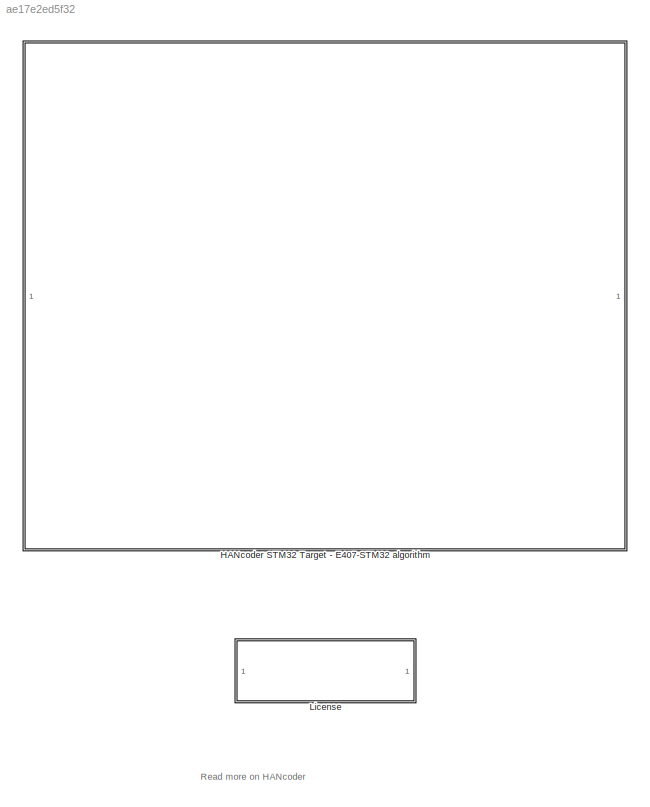
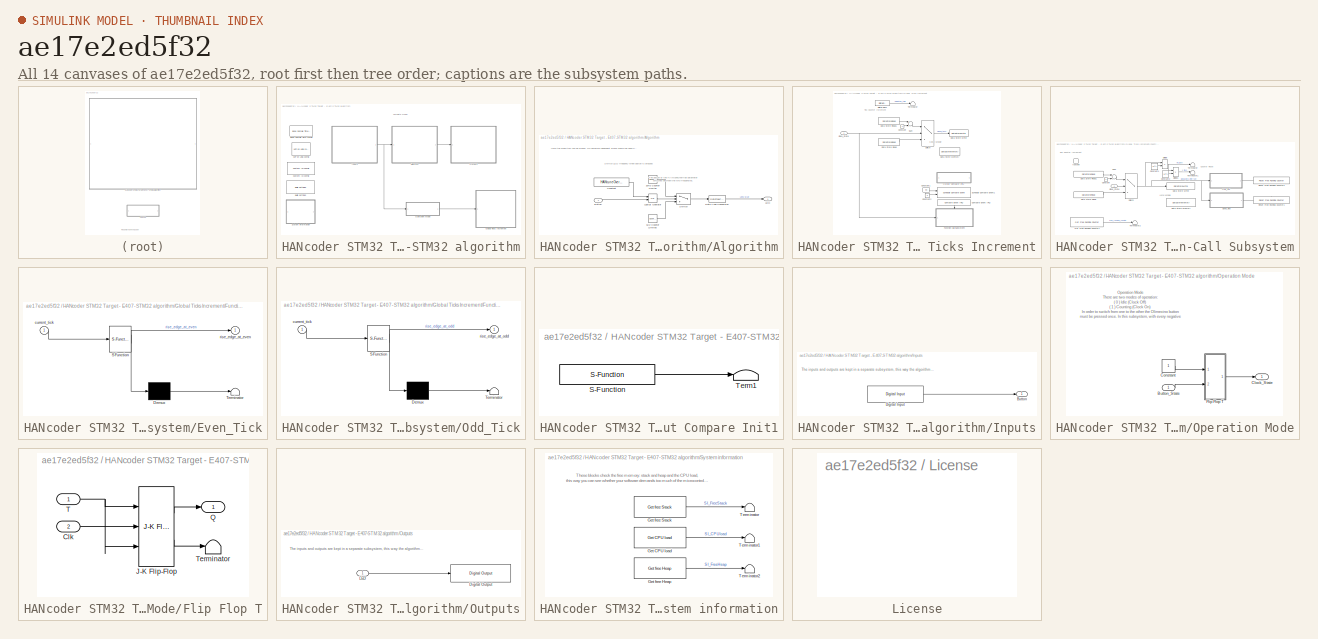
[diagram: thumbnail index - all 14 canvases of the model, root first then tree order]
MODEL slx_ae17e2ed5f32
KIND model
CONFIG AbsTol = auto
CONFIG EnableMultiTasking = off
CONFIG FixedStep = 0.01
CONFIG MaxStep = auto
CONFIG MinStep = auto
CONFIG PreLoadFcn = librarySetup\neval([bdroot,'_startup']) %Calling [modelName]_startup.m
CONFIG RelTol = 1e-3
CONFIG SampleTimeConstraint = Unconstrained
CONFIG Solver = FixedStepDiscrete
CONFIG SolverName = FixedStepDiscrete
CONFIG StartTime = 0.0
CONFIG StopTime = 1
BLOCK [SubSystem] HANcoder STM32 Target - E407-STM32 algorithm
  CopyFcn = HANcoderChecks('Copy');
  MoveFcn = HANcoderChecks('MoveE407');
  NameChangeFcn = HANcoderChecks('NameChangeE407');
  Ports = []
  RequestExecContextInheritance = off
BLOCK [SubSystem] HANcoder STM32 Target - E407-STM32 algorithm/Algorithm
  Ports = [1, 1]
  RequestExecContextInheritance = off
BLOCK [Reference] HANcoder STM32 Target - E407-STM32 algorithm/Algorithm/10Hz Counter Limiter  REF=simulink/Sources/Counter
Limited
  Ports = [0, 1]
  SourceBlock = simulink/Sources/Counter\nLimited
  SourceProductBaseCode = SL
  SourceProductName = Simulink
  SourceType = Counter Limited
BLOCK [Reference] HANcoder STM32 Target - E407-STM32 algorithm/Algorithm/5Hz Counter Limited  REF=simulink/Sources/Counter
Limited
  Ports = [0, 1]
  SourceBlock = simulink/Sources/Counter\nLimited
  SourceProductBaseCode = SL
  SourceProductName = Simulink
  SourceType = Counter Limited
BLOCK [Inport] HANcoder STM32 Target - E407-STM32 algorithm/Algorithm/Button
  IconDisplay = Port number
BLOCK [Constant] HANcoder STM32 Target - E407-STM32 algorithm/Algorithm/Constant
  OutDataTypeStr = boolean
  Value = HANtuneOverride
BLOCK [DataTypeConversion] HANcoder STM32 Target - E407-STM32 algorithm/Algorithm/Data Type Conversion
  OutDataTypeStr = boolean
  RndMeth = Floor
  SaturateOnIntegerOverflow = off
BLOCK [Outport] HANcoder STM32 Target - E407-STM32 algorithm/Algorithm/LED
  IconDisplay = Port number
BLOCK [Logic] HANcoder STM32 Target - E407-STM32 algorithm/Algorithm/Logical Operator
  AllPortsSameDT = off
  Operator = OR
  OutDataTypeStr = boolean
  Ports = [2, 1]
BLOCK [Switch] HANcoder STM32 Target - E407-STM32 algorithm/Algorithm/Switch
  Criteria = u2 > Threshold
  InputSameDT = off
  SaturateOnIntegerOverflow = off
BLOCK [Reference] HANcoder STM32 Target - E407-STM32 algorithm/Base Sample Time config  REF=HANcoder_STM32_Target/STM32-E407/System Config/Base Sample Time config
  Description = HANcoder Target STM32-E407 blockset version 0.5
  Ports = []
  SourceBlock = HANcoder_STM32_Target/STM32-E407/System Config/Base Sample Time config
  SourceProductName = HANcoder STM32 Target
  SourceType = Base Sample Time config
  Tag = HANcoder_TARGET_STM32_E407
  UserDataPersistent = on
BLOCK [Reference] HANcoder STM32 Target - E407-STM32 algorithm/Build settings  REF=HANcoder_STM32_Target/STM32-E407/System Config/Build settings
  Ports = []
  SourceBlock = HANcoder_STM32_Target/STM32-E407/System Config/Build settings
  SourceProductName = HANcoder STM32 Target
  SourceType = Build Settings
  Tag = HANcoder_TARGET_STM32_E407
  UserDataPersistent = on
BLOCK [Reference] HANcoder STM32 Target - E407-STM32 algorithm/Custom ID config  REF=HANcoder_STM32_Target/STM32-E407/System Config/Custom ID config
  Ports = []
  SourceBlock = HANcoder_STM32_Target/STM32-E407/System Config/Custom ID config
  SourceProductName = HANcoder STM32 Target
  SourceType = Custom ID config
  Tag = HANcoder_TARGET_STM32_E407
  UserDataPersistent = on
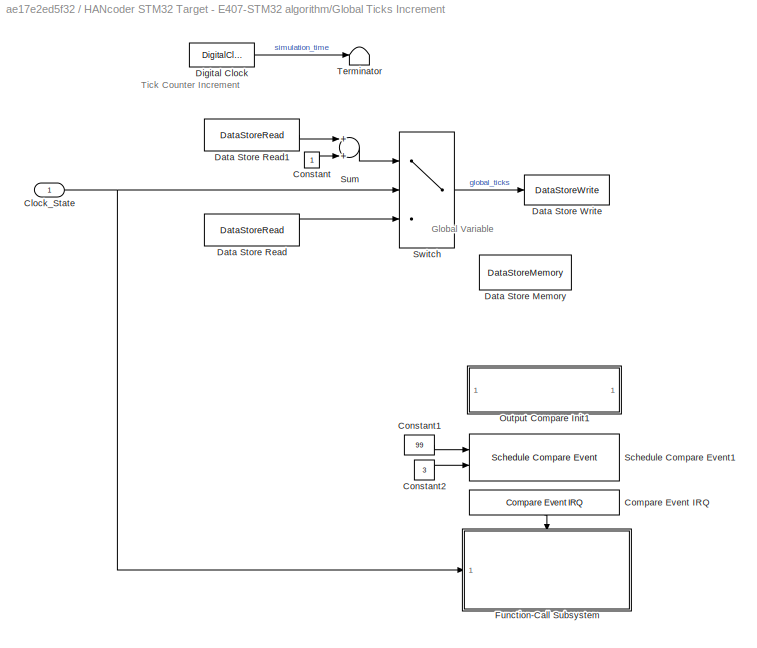
BLOCK [SubSystem] HANcoder STM32 Target - E407-STM32 algorithm/Global Ticks Increment
  Ports = [1]
  RequestExecContextInheritance = off
BLOCK [Inport] HANcoder STM32 Target - E407-STM32 algorithm/Global Ticks Increment/Clock_State
  IconDisplay = Port number
BLOCK [Reference] HANcoder STM32 Target - E407-STM32 algorithm/Global Ticks Increment/Compare Event IRQ  REF=HANcoder_STM32_Target/STM32-E407/Timer Outputs/Compare Event IRQ
  Ports = [0, 1]
  SourceBlock = HANcoder_STM32_Target/STM32-E407/Timer Outputs/Compare Event IRQ
  SourceProductName = HANcoder STM32 Target
  SourceType = Compare Event IRQ
  Tag = HANcoder_TARGET_STM32_E407
  UserDataPersistent = on
BLOCK [Constant] HANcoder STM32 Target - E407-STM32 algorithm/Global Ticks Increment/Constant
BLOCK [Constant] HANcoder STM32 Target - E407-STM32 algorithm/Global Ticks Increment/Constant1
  OutDataTypeStr = uint16
  Value = 99
BLOCK [Constant] HANcoder STM32 Target - E407-STM32 algorithm/Global Ticks Increment/Constant2
  OutDataTypeStr = uint8
  Value = 3
BLOCK [DataStoreMemory] HANcoder STM32 Target - E407-STM32 algorithm/Global Ticks Increment/Data Store Memory
  DataStoreName = global_ticks_mem
  ReadBeforeWriteMsg = warning
  ShowAdditionalParam = off
  WriteAfterReadMsg = warning
  WriteAfterWriteMsg = warning
BLOCK [DataStoreRead] HANcoder STM32 Target - E407-STM32 algorithm/Global Ticks Increment/Data Store Read
  DataStoreName = global_ticks_mem
  Ports = [0, 1]
BLOCK [DataStoreRead] HANcoder STM32 Target - E407-STM32 algorithm/Global Ticks Increment/Data Store Read1
  DataStoreName = global_ticks_mem
  Ports = [0, 1]
BLOCK [DataStoreWrite] HANcoder STM32 Target - E407-STM32 algorithm/Global Ticks Increment/Data Store Write
  DataStoreName = global_ticks_mem
  Ports = [1]
BLOCK [DigitalClock] HANcoder STM32 Target - E407-STM32 algorithm/Global Ticks Increment/Digital Clock
  SampleTime = 0.01
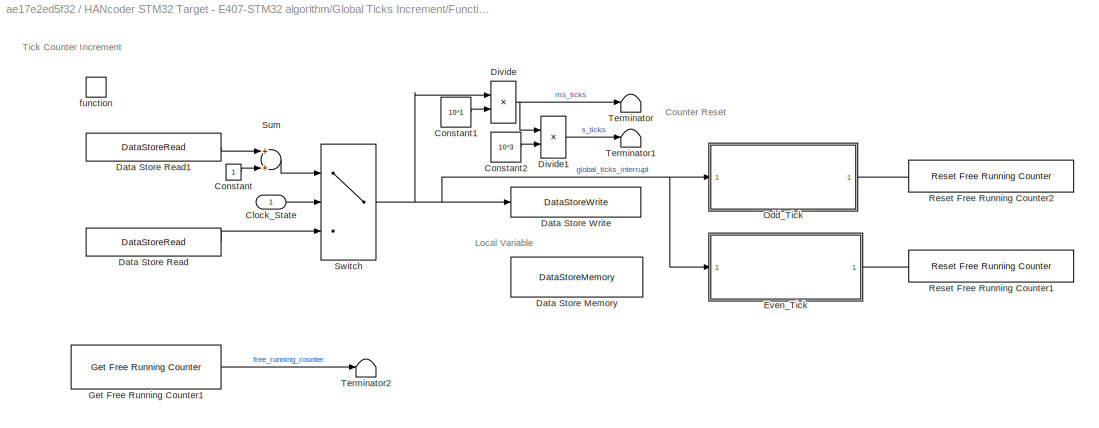
BLOCK [SubSystem] HANcoder STM32 Target - E407-STM32 algorithm/Global Ticks Increment/Function-Call Subsystem
  Ports = [1, 0, 0, 1]
  RequestExecContextInheritance = off
  TreatAsAtomicUnit = on
BLOCK [Inport] HANcoder STM32 Target - E407-STM32 algorithm/Global Ticks Increment/Function-Call Subsystem/Clock_State
  IconDisplay = Port number
BLOCK [Constant] HANcoder STM32 Target - E407-STM32 algorithm/Global Ticks Increment/Function-Call Subsystem/Constant
BLOCK [Constant] HANcoder STM32 Target - E407-STM32 algorithm/Global Ticks Increment/Function-Call Subsystem/Constant1
  Value = 10^1
BLOCK [Constant] HANcoder STM32 Target - E407-STM32 algorithm/Global Ticks Increment/Function-Call Subsystem/Constant2
  Value = 10^3
BLOCK [DataStoreMemory] HANcoder STM32 Target - E407-STM32 algorithm/Global Ticks Increment/Function-Call Subsystem/Data Store Memory
  DataStoreName = global_ticks_mem_IRQ
  ReadBeforeWriteMsg = warning
  ShowAdditionalParam = off
  WriteAfterReadMsg = warning
  WriteAfterWriteMsg = warning
BLOCK [DataStoreRead] HANcoder STM32 Target - E407-STM32 algorithm/Global Ticks Increment/Function-Call Subsystem/Data Store Read
  DataStoreName = global_ticks_mem_IRQ
  Ports = [0, 1]
BLOCK [DataStoreRead] HANcoder STM32 Target - E407-STM32 algorithm/Global Ticks Increment/Function-Call Subsystem/Data Store Read1
  DataStoreName = global_ticks_mem_IRQ
  Ports = [0, 1]
BLOCK [DataStoreWrite] HANcoder STM32 Target - E407-STM32 algorithm/Global Ticks Increment/Function-Call Subsystem/Data Store Write
  DataStoreName = global_ticks_mem_IRQ
  Ports = [1]
BLOCK [Product] HANcoder STM32 Target - E407-STM32 algorithm/Global Ticks Increment/Function-Call Subsystem/Divide
  InputSameDT = off
  Inputs = */
  OutDataTypeStr = Inherit: Inherit via internal rule
  Ports = [2, 1]
  RndMeth = Floor
  SaturateOnIntegerOverflow = off
BLOCK [Product] HANcoder STM32 Target - E407-STM32 algorithm/Global Ticks Increment/Function-Call Subsystem/Divide1
  InputSameDT = off
  Inputs = */
  OutDataTypeStr = Inherit: Inherit via internal rule
  Ports = [2, 1]
  RndMeth = Floor
  SaturateOnIntegerOverflow = off
BLOCK [SubSystem] HANcoder STM32 Target - E407-STM32 algorithm/Global Ticks Increment/Function-Call Subsystem/Even_Tick
  ErrorFcn = Stateflow.Translate.translate
  PermitHierarchicalResolution = ExplicitOnly
  Ports = [1, 1]
  RequestExecContextInheritance = off
  SFBlockType = Chart
  TreatAsAtomicUnit = on
BLOCK [Demux] HANcoder STM32 Target - E407-STM32 algorithm/Global Ticks Increment/Function-Call Subsystem/Even_Tick/ Demux 
  Outputs = 1
  Ports = [1, 1]
BLOCK [S-Function] HANcoder STM32 Target - E407-STM32 algorithm/Global Ticks Increment/Function-Call Subsystem/Even_Tick/ SFunction 
  EnableBusSupport = on
  FunctionName = sf_sfun
  PortCounts = [1 2]
  Ports = [1, 2]
  SFcnIsStateOwnerBlock = off
  SFunctionDeploymentMode = off
  Tag = Stateflow S-Function HANcoder_E407_Local_Time_Ticks 1
BLOCK [Terminator] HANcoder STM32 Target - E407-STM32 algorithm/Global Ticks Increment/Function-Call Subsystem/Even_Tick/ Terminator 
BLOCK [Inport] HANcoder STM32 Target - E407-STM32 algorithm/Global Ticks Increment/Function-Call Subsystem/Even_Tick/current_tick
  IconDisplay = Port number
BLOCK [Outport] HANcoder STM32 Target - E407-STM32 algorithm/Global Ticks Increment/Function-Call Subsystem/Even_Tick/rise_edge_at_even
  IconDisplay = Port number
BLOCK [Reference] HANcoder STM32 Target - E407-STM32 algorithm/Global Ticks Increment/Function-Call Subsystem/Get Free Running Counter1  REF=HANcoder_STM32_Target/STM32-E407/Timer Outputs/Get Free Running Counter
  Ports = [0, 1]
  SourceBlock = HANcoder_STM32_Target/STM32-E407/Timer Outputs/Get Free Running Counter
  SourceProductName = HANcoder STM32 Target
  SourceType = Get Free Running Counter
  Tag = HANcoder_TARGET_STM32_E407
  UserDataPersistent = on
BLOCK [SubSystem] HANcoder STM32 Target - E407-STM32 algorithm/Global Ticks Increment/Function-Call Subsystem/Odd_Tick
  ErrorFcn = Stateflow.Translate.translate
  PermitHierarchicalResolution = ExplicitOnly
  Ports = [1, 1]
  RequestExecContextInheritance = off
  SFBlockType = Chart
  TreatAsAtomicUnit = on
BLOCK [Demux] HANcoder STM32 Target - E407-STM32 algorithm/Global Ticks Increment/Function-Call Subsystem/Odd_Tick/ Demux 
  Outputs = 1
  Ports = [1, 1]
BLOCK [S-Function] HANcoder STM32 Target - E407-STM32 algorithm/Global Ticks Increment/Function-Call Subsystem/Odd_Tick/ SFunction 
  EnableBusSupport = on
  FunctionName = sf_sfun
  PortCounts = [1 2]
  Ports = [1, 2]
  SFcnIsStateOwnerBlock = off
  SFunctionDeploymentMode = off
  Tag = Stateflow S-Function HANcoder_E407_Local_Time_Ticks 3
BLOCK [Terminator] HANcoder STM32 Target - E407-STM32 algorithm/Global Ticks Increment/Function-Call Subsystem/Odd_Tick/ Terminator 
BLOCK [Inport] HANcoder STM32 Target - E407-STM32 algorithm/Global Ticks Increment/Function-Call Subsystem/Odd_Tick/current_tick
  IconDisplay = Port number
BLOCK [Outport] HANcoder STM32 Target - E407-STM32 algorithm/Global Ticks Increment/Function-Call Subsystem/Odd_Tick/rise_edge_at_odd
  IconDisplay = Port number
BLOCK [Reference] HANcoder STM32 Target - E407-STM32 algorithm/Global Ticks Increment/Function-Call Subsystem/Reset Free Running Counter1  REF=HANcoder_STM32_Target/STM32-E407/Timer Outputs/Reset Free Running Counter
  Ports = [0, 0, 0, 1]
  SourceBlock = HANcoder_STM32_Target/STM32-E407/Timer Outputs/Reset Free Running Counter
  SourceProductName = HANcoder STM32 Target
  SourceType = Reset Free Running Counter
  Tag = HANcoder_TARGET_STM32_E407
  UserDataPersistent = on
BLOCK [Reference] HANcoder STM32 Target - E407-STM32 algorithm/Global Ticks Increment/Function-Call Subsystem/Reset Free Running Counter2  REF=HANcoder_STM32_Target/STM32-E407/Timer Outputs/Reset Free Running Counter
  Ports = [0, 0, 0, 1]
  SourceBlock = HANcoder_STM32_Target/STM32-E407/Timer Outputs/Reset Free Running Counter
  SourceProductName = HANcoder STM32 Target
  SourceType = Reset Free Running Counter
  Tag = HANcoder_TARGET_STM32_E407
  UserDataPersistent = on
BLOCK [Sum] HANcoder STM32 Target - E407-STM32 algorithm/Global Ticks Increment/Function-Call Subsystem/Sum
  InputSameDT = off
  OutDataTypeStr = Inherit: Inherit via internal rule
  Ports = [2, 1]
  SaturateOnIntegerOverflow = off
BLOCK [Switch] HANcoder STM32 Target - E407-STM32 algorithm/Global Ticks Increment/Function-Call Subsystem/Switch
  Criteria = u2 > Threshold
  InputSameDT = off
  SaturateOnIntegerOverflow = off
BLOCK [Terminator] HANcoder STM32 Target - E407-STM32 algorithm/Global Ticks Increment/Function-Call Subsystem/Terminator
BLOCK [Terminator] HANcoder STM32 Target - E407-STM32 algorithm/Global Ticks Increment/Function-Call Subsystem/Terminator1
BLOCK [Terminator] HANcoder STM32 Target - E407-STM32 algorithm/Global Ticks Increment/Function-Call Subsystem/Terminator2
BLOCK [TriggerPort] HANcoder STM32 Target - E407-STM32 algorithm/Global Ticks Increment/Function-Call Subsystem/function
  Ports = []
  StatesWhenEnabling = held
  TriggerType = function-call
  VariantControl = Variant
BLOCK [SubSystem] HANcoder STM32 Target - E407-STM32 algorithm/Global Ticks Increment/Output Compare Init1
  AncestorBlock = HANcoder_STM32_Target/STM32-E407/Timer Outputs/Output Compare Init
  CopyFcn = sfcn_timeout_init_chk();
  MoveFcn = drawLogos
  Ports = []
  RequestExecContextInheritance = off
  Tag = HANcoder_TARGET_STM32_E407
  UserDataPersistent = on
BLOCK [S-Function] HANcoder STM32 Target - E407-STM32 algorithm/Global Ticks Increment/Output Compare Init1/S-Function
  EnableBusSupport = off
  FunctionName = sfcn_timeout_init
  Ports = [0, 1]
  SFcnIsStateOwnerBlock = off
  SFunctionDeploymentMode = off
BLOCK [Terminator] HANcoder STM32 Target - E407-STM32 algorithm/Global Ticks Increment/Output Compare Init1/Term1
BLOCK [Reference] HANcoder STM32 Target - E407-STM32 algorithm/Global Ticks Increment/Schedule Compare Event1  REF=HANcoder_STM32_Target/STM32-E407/Timer Outputs/Schedule Compare Event
  Ports = [2]
  SourceBlock = HANcoder_STM32_Target/STM32-E407/Timer Outputs/Schedule Compare Event
  SourceProductName = HANcoder STM32 Target
  SourceType = Schedule Compare Event
  Tag = HANcoder_TARGET_STM32_E407
  UserDataPersistent = on
BLOCK [Sum] HANcoder STM32 Target - E407-STM32 algorithm/Global Ticks Increment/Sum
  InputSameDT = off
  OutDataTypeStr = Inherit: Inherit via internal rule
  Ports = [2, 1]
  SaturateOnIntegerOverflow = off
BLOCK [Switch] HANcoder STM32 Target - E407-STM32 algorithm/Global Ticks Increment/Switch
  Criteria = u2 > Threshold
  InputSameDT = off
  SaturateOnIntegerOverflow = off
BLOCK [Terminator] HANcoder STM32 Target - E407-STM32 algorithm/Global Ticks Increment/Terminator
BLOCK [SubSystem] HANcoder STM32 Target - E407-STM32 algorithm/Inputs
  Ports = [0, 1]
  RequestExecContextInheritance = off
BLOCK [Outport] HANcoder STM32 Target - E407-STM32 algorithm/Inputs/Button
  IconDisplay = Port number
BLOCK [Reference] HANcoder STM32 Target - E407-STM32 algorithm/Inputs/Digital Input  REF=HANcoder_STM32_Target/STM32-E407/Digital Inputs/Digital Input
  Ports = [0, 1]
  SourceBlock = HANcoder_STM32_Target/STM32-E407/Digital Inputs/Digital Input
  SourceProductName = HANcoder STM32 Target
  SourceType = Digital Input
  Tag = HANcoder_TARGET_STM32_E407
  UserDataPersistent = on
BLOCK [SubSystem] HANcoder STM32 Target - E407-STM32 algorithm/Operation Mode
  Ports = [1, 1]
  RequestExecContextInheritance = off
BLOCK [Inport] HANcoder STM32 Target - E407-STM32 algorithm/Operation Mode/Button_State
  IconDisplay = Port number
BLOCK [Outport] HANcoder STM32 Target - E407-STM32 algorithm/Operation Mode/Clock_State
  IconDisplay = Port number
BLOCK [Constant] HANcoder STM32 Target - E407-STM32 algorithm/Operation Mode/Constant
  OutDataTypeStr = boolean
BLOCK [SubSystem] HANcoder STM32 Target - E407-STM32 algorithm/Operation Mode/Flip Flop T
  Ports = [2, 1]
  RequestExecContextInheritance = off
BLOCK [Inport] HANcoder STM32 Target - E407-STM32 algorithm/Operation Mode/Flip Flop T/Clk
  IconDisplay = Port number
  Port = 2
BLOCK [Reference] HANcoder STM32 Target - E407-STM32 algorithm/Operation Mode/Flip Flop T/J-K Flip-Flop  REF=simulink_extras/Flip Flops/J-K
Flip-Flop
  Ports = [3, 2]
  SourceBlock = simulink_extras/Flip Flops/J-K\nFlip-Flop
  SourceProductBaseCode = SL
  SourceProductName = Simulink
  SourceType = JKFlipFlop
BLOCK [Outport] HANcoder STM32 Target - E407-STM32 algorithm/Operation Mode/Flip Flop T/Q
  IconDisplay = Port number
BLOCK [Inport] HANcoder STM32 Target - E407-STM32 algorithm/Operation Mode/Flip Flop T/T
  IconDisplay = Port number
BLOCK [Terminator] HANcoder STM32 Target - E407-STM32 algorithm/Operation Mode/Flip Flop T/Terminator
BLOCK [SubSystem] HANcoder STM32 Target - E407-STM32 algorithm/Outputs
  Ports = [1]
  RequestExecContextInheritance = off
BLOCK [Reference] HANcoder STM32 Target - E407-STM32 algorithm/Outputs/Digital Output  REF=HANcoder_STM32_Target/STM32-E407/Digital Outputs/Digital Output
  Ports = [1]
  SourceBlock = HANcoder_STM32_Target/STM32-E407/Digital Outputs/Digital Output
  SourceProductName = HANcoder STM32 Target
  SourceType = Digital Output
  Tag = HANcoder_TARGET_STM32_E407
  UserDataPersistent = on
BLOCK [Inport] HANcoder STM32 Target - E407-STM32 algorithm/Outputs/LED
  IconDisplay = Port number
BLOCK [SubSystem] HANcoder STM32 Target - E407-STM32 algorithm/System information
  Ports = []
  RequestExecContextInheritance = off
BLOCK [Reference] HANcoder STM32 Target - E407-STM32 algorithm/System information/Get CPU load  REF=HANcoder_STM32_Target/STM32-E407/System Management/Get CPU load
  Ports = [0, 1]
  SourceBlock = HANcoder_STM32_Target/STM32-E407/System Management/Get CPU load
  SourceProductName = HANcoder STM32 Target
  SourceType = Get CPU load
  Tag = HANcoder_TARGET_STM32_E407
  UserDataPersistent = on
BLOCK [Reference] HANcoder STM32 Target - E407-STM32 algorithm/System information/Get free Heap  REF=HANcoder_STM32_Target/STM32-E407/System Management/Get free Heap
  Ports = [0, 1]
  SourceBlock = HANcoder_STM32_Target/STM32-E407/System Management/Get free Heap
  SourceProductName = HANcoder STM32 Target
  SourceType = Get free Heap
  Tag = HANcoder_TARGET_STM32_E407
  UserDataPersistent = on
BLOCK [Reference] HANcoder STM32 Target - E407-STM32 algorithm/System information/Get free Stack  REF=HANcoder_STM32_Target/STM32-E407/System Management/Get free Stack
  Ports = [0, 1]
  SourceBlock = HANcoder_STM32_Target/STM32-E407/System Management/Get free Stack
  SourceProductName = HANcoder STM32 Target
  SourceType = Get free Stacl
  Tag = HANcoder_TARGET_STM32_E407
  UserDataPersistent = on
BLOCK [Terminator] HANcoder STM32 Target - E407-STM32 algorithm/System information/Terminator
BLOCK [Terminator] HANcoder STM32 Target - E407-STM32 algorithm/System information/Terminator1
BLOCK [Terminator] HANcoder STM32 Target - E407-STM32 algorithm/System information/Terminator2
BLOCK [Reference] HANcoder STM32 Target - E407-STM32 algorithm/XCP on USB config  REF=HANcoder_STM32_Target/STM32-E407/System Config/XCP on USB config
  Ports = []
  SourceBlock = HANcoder_STM32_Target/STM32-E407/System Config/XCP on USB config
  SourceProductName = HANcoder STM32 Target
  SourceType = XCP on USB config
  Tag = HANcoder_TARGET_STM32_E407
  UserDataPersistent = on
BLOCK [SubSystem] License
  MoveFcn = HANcoderChecks('MoveLicenseBlock');
  NameChangeFcn = HANcoderChecks('NameChangeLicenseBlock');
  OpenFcn = winopen('License.pdf')
  Ports = []
  RequestExecContextInheritance = off
  ShowPortLabels = none
ANNOTATION (root): Read more on HANcoder
ANNOTATION HANcoder STM32 Target - E407-STM32 algorithm: Template model
ANNOTATION HANcoder STM32 Target - E407-STM32 algorithm/Algorithm: Here the algorithm can be placed. No hardware dependent blocks should be used here.
ANNOTATION HANcoder STM32 Target - E407-STM32 algorithm/Algorithm: Switch LED frequency when button is pressed
ANNOTATION HANcoder STM32 Target - E407-STM32 algorithm/Algorithm: The button or the HANtuneOverride parameter switches between the two frequencies.
ANNOTATION HANcoder STM32 Target - E407-STM32 algorithm/Global Ticks Increment: Global Variable
ANNOTATION HANcoder STM32 Target - E407-STM32 algorithm/Global Ticks Increment: Tick Counter Increment
ANNOTATION HANcoder STM32 Target - E407-STM32 algorithm/Global Ticks Increment/Function-Call Subsystem: Local Variable
ANNOTATION HANcoder STM32 Target - E407-STM32 algorithm/Global Ticks Increment/Function-Call Subsystem: Counter Reset
ANNOTATION HANcoder STM32 Target - E407-STM32 algorithm/Global Ticks Increment/Function-Call Subsystem: Tick Counter Increment
ANNOTATION HANcoder STM32 Target - E407-STM32 algorithm/Inputs: The inputs and outputs are kept in a separate subsystem, this way the algorithm can easily be transferred to different hardware
ANNOTATION HANcoder STM32 Target - E407-STM32 algorithm/Operation Mode: Operation Mode There are two modes of operation: ( 0 ) Idle (Clock Off) ( 1 ) Counting (Clock On) In order to switch from one to the other the Olimexino button must be pressed once. In this subsystem, with every negative edge of the Button State, the Operation Mode will change from one to the other.
ANNOTATION HANcoder STM32 Target - E407-STM32 algorithm/Outputs: The inputs and outputs are kept in a separate subsystem, this way the algorithm can easily be transferred to different hardware
ANNOTATION HANcoder STM32 Target - E407-STM32 algorithm/System information: These blocks check the free memory: stack and heap and the CPU load, this way you can see whether your software demands too much of the microcontroller
LINE HANcoder STM32 Target - E407-STM32 algorithm/Algorithm/10Hz Counter Limiter:1 -> HANcoder STM32 Target - E407-STM32 algorithm/Algorithm/Switch:1
LINE HANcoder STM32 Target - E407-STM32 algorithm/Algorithm/5Hz Counter Limited:1 -> HANcoder STM32 Target - E407-STM32 algorithm/Algorithm/Switch:3
LINE HANcoder STM32 Target - E407-STM32 algorithm/Algorithm/Button:1 -> HANcoder STM32 Target - E407-STM32 algorithm/Algorithm/Logical Operator:2
LINE HANcoder STM32 Target - E407-STM32 algorithm/Algorithm/Constant:1 -> HANcoder STM32 Target - E407-STM32 algorithm/Algorithm/Logical Operator:1
LINE HANcoder STM32 Target - E407-STM32 algorithm/Algorithm/Data Type Conversion:1 -> HANcoder STM32 Target - E407-STM32 algorithm/Algorithm/LED:1
LINE HANcoder STM32 Target - E407-STM32 algorithm/Algorithm/Logical Operator:1 -> HANcoder STM32 Target - E407-STM32 algorithm/Algorithm/Switch:2
LINE HANcoder STM32 Target - E407-STM32 algorithm/Algorithm/Switch:1 -> HANcoder STM32 Target - E407-STM32 algorithm/Algorithm/Data Type Conversion:1
LINE HANcoder STM32 Target - E407-STM32 algorithm/Algorithm:1 -> HANcoder STM32 Target - E407-STM32 algorithm/Outputs:1
NET HANcoder STM32 Target - E407-STM32 algorithm/Global Ticks Increment/Clock_State:1 -> HANcoder STM32 Target - E407-STM32 algorithm/Global Ticks Increment/Function-Call Subsystem:1, HANcoder STM32 Target - E407-STM32 algorithm/Global Ticks Increment/Switch:2
LINE HANcoder STM32 Target - E407-STM32 algorithm/Global Ticks Increment/Compare Event IRQ:1 -> HANcoder STM32 Target - E407-STM32 algorithm/Global Ticks Increment/Function-Call Subsystem:trigger
LINE HANcoder STM32 Target - E407-STM32 algorithm/Global Ticks Increment/Constant1:1 -> HANcoder STM32 Target - E407-STM32 algorithm/Global Ticks Increment/Schedule Compare Event1:1
LINE HANcoder STM32 Target - E407-STM32 algorithm/Global Ticks Increment/Constant2:1 -> HANcoder STM32 Target - E407-STM32 algorithm/Global Ticks Increment/Schedule Compare Event1:2
LINE HANcoder STM32 Target - E407-STM32 algorithm/Global Ticks Increment/Constant:1 -> HANcoder STM32 Target - E407-STM32 algorithm/Global Ticks Increment/Sum:2
LINE HANcoder STM32 Target - E407-STM32 algorithm/Global Ticks Increment/Data Store Read1:1 -> HANcoder STM32 Target - E407-STM32 algorithm/Global Ticks Increment/Sum:1
LINE HANcoder STM32 Target - E407-STM32 algorithm/Global Ticks Increment/Data Store Read:1 -> HANcoder STM32 Target - E407-STM32 algorithm/Global Ticks Increment/Switch:3
LINE HANcoder STM32 Target - E407-STM32 algorithm/Global Ticks Increment/Digital Clock:1 -> HANcoder STM32 Target - E407-STM32 algorithm/Global Ticks Increment/Terminator:1
LINE HANcoder STM32 Target - E407-STM32 algorithm/Global Ticks Increment/Function-Call Subsystem/Clock_State:1 -> HANcoder STM32 Target - E407-STM32 algorithm/Global Ticks Increment/Function-Call Subsystem/Switch:2
LINE HANcoder STM32 Target - E407-STM32 algorithm/Global Ticks Increment/Function-Call Subsystem/Constant1:1 -> HANcoder STM32 Target - E407-STM32 algorithm/Global Ticks Increment/Function-Call Subsystem/Divide:2
LINE HANcoder STM32 Target - E407-STM32 algorithm/Global Ticks Increment/Function-Call Subsystem/Constant2:1 -> HANcoder STM32 Target - E407-STM32 algorithm/Global Ticks Increment/Function-Call Subsystem/Divide1:2
LINE HANcoder STM32 Target - E407-STM32 algorithm/Global Ticks Increment/Function-Call Subsystem/Constant:1 -> HANcoder STM32 Target - E407-STM32 algorithm/Global Ticks Increment/Function-Call Subsystem/Sum:2
LINE HANcoder STM32 Target - E407-STM32 algorithm/Global Ticks Increment/Function-Call Subsystem/Data Store Read1:1 -> HANcoder STM32 Target - E407-STM32 algorithm/Global Ticks Increment/Function-Call Subsystem/Sum:1
LINE HANcoder STM32 Target - E407-STM32 algorithm/Global Ticks Increment/Function-Call Subsystem/Data Store Read:1 -> HANcoder STM32 Target - E407-STM32 algorithm/Global Ticks Increment/Function-Call Subsystem/Switch:3
LINE HANcoder STM32 Target - E407-STM32 algorithm/Global Ticks Increment/Function-Call Subsystem/Divide1:1 -> HANcoder STM32 Target - E407-STM32 algorithm/Global Ticks Increment/Function-Call Subsystem/Terminator1:1
NET HANcoder STM32 Target - E407-STM32 algorithm/Global Ticks Increment/Function-Call Subsystem/Divide:1 -> HANcoder STM32 Target - E407-STM32 algorithm/Global Ticks Increment/Function-Call Subsystem/Divide1:1, HANcoder STM32 Target - E407-STM32 algorithm/Global Ticks Increment/Function-Call Subsystem/Terminator:1
LINE HANcoder STM32 Target - E407-STM32 algorithm/Global Ticks Increment/Function-Call Subsystem/Even_Tick:1 -> HANcoder STM32 Target - E407-STM32 algorithm/Global Ticks Increment/Function-Call Subsystem/Reset Free Running Counter1:trigger
LINE HANcoder STM32 Target - E407-STM32 algorithm/Global Ticks Increment/Function-Call Subsystem/Get Free Running Counter1:1 -> HANcoder STM32 Target - E407-STM32 algorithm/Global Ticks Increment/Function-Call Subsystem/Terminator2:1
LINE HANcoder STM32 Target - E407-STM32 algorithm/Global Ticks Increment/Function-Call Subsystem/Odd_Tick:1 -> HANcoder STM32 Target - E407-STM32 algorithm/Global Ticks Increment/Function-Call Subsystem/Reset Free Running Counter2:trigger
LINE HANcoder STM32 Target - E407-STM32 algorithm/Global Ticks Increment/Function-Call Subsystem/Sum:1 -> HANcoder STM32 Target - E407-STM32 algorithm/Global Ticks Increment/Function-Call Subsystem/Switch:1
NET HANcoder STM32 Target - E407-STM32 algorithm/Global Ticks Increment/Function-Call Subsystem/Switch:1 -> HANcoder STM32 Target - E407-STM32 algorithm/Global Ticks Increment/Function-Call Subsystem/Data Store Write:1, HANcoder STM32 Target - E407-STM32 algorithm/Global Ticks Increment/Function-Call Subsystem/Divide:1, HANcoder STM32 Target - E407-STM32 algorithm/Global Ticks Increment/Function-Call Subsystem/Even_Tick:1, HANcoder STM32 Target - E407-STM32 algorithm/Global Ticks Increment/Function-Call Subsystem/Odd_Tick:1
LINE HANcoder STM32 Target - E407-STM32 algorithm/Global Ticks Increment/Sum:1 -> HANcoder STM32 Target - E407-STM32 algorithm/Global Ticks Increment/Switch:1
LINE HANcoder STM32 Target - E407-STM32 algorithm/Global Ticks Increment/Switch:1 -> HANcoder STM32 Target - E407-STM32 algorithm/Global Ticks Increment/Data Store Write:1
LINE HANcoder STM32 Target - E407-STM32 algorithm/Inputs/Digital Input:1 -> HANcoder STM32 Target - E407-STM32 algorithm/Inputs/Button:1
NET HANcoder STM32 Target - E407-STM32 algorithm/Inputs:1 -> HANcoder STM32 Target - E407-STM32 algorithm/Algorithm:1, HANcoder STM32 Target - E407-STM32 algorithm/Operation Mode:1
LINE HANcoder STM32 Target - E407-STM32 algorithm/Operation Mode/Button_State:1 -> HANcoder STM32 Target - E407-STM32 algorithm/Operation Mode/Flip Flop T:2
LINE HANcoder STM32 Target - E407-STM32 algorithm/Operation Mode/Constant:1 -> HANcoder STM32 Target - E407-STM32 algorithm/Operation Mode/Flip Flop T:1
LINE HANcoder STM32 Target - E407-STM32 algorithm/Operation Mode/Flip Flop T/Clk:1 -> HANcoder STM32 Target - E407-STM32 algorithm/Operation Mode/Flip Flop T/J-K Flip-Flop:2
LINE HANcoder STM32 Target - E407-STM32 algorithm/Operation Mode/Flip Flop T/J-K Flip-Flop:1 -> HANcoder STM32 Target - E407-STM32 algorithm/Operation Mode/Flip Flop T/Q:1
LINE HANcoder STM32 Target - E407-STM32 algorithm/Operation Mode/Flip Flop T/J-K Flip-Flop:2 -> HANcoder STM32 Target - E407-STM32 algorithm/Operation Mode/Flip Flop T/Terminator:1
NET HANcoder STM32 Target - E407-STM32 algorithm/Operation Mode/Flip Flop T/T:1 -> HANcoder STM32 Target - E407-STM32 algorithm/Operation Mode/Flip Flop T/J-K Flip-Flop:1, HANcoder STM32 Target - E407-STM32 algorithm/Operation Mode/Flip Flop T/J-K Flip-Flop:3
LINE HANcoder STM32 Target - E407-STM32 algorithm/Operation Mode/Flip Flop T:1 -> HANcoder STM32 Target - E407-STM32 algorithm/Operation Mode/Clock_State:1
LINE HANcoder STM32 Target - E407-STM32 algorithm/Operation Mode:1 -> HANcoder STM32 Target - E407-STM32 algorithm/Global Ticks Increment:1
LINE HANcoder STM32 Target - E407-STM32 algorithm/Outputs/LED:1 -> HANcoder STM32 Target - E407-STM32 algorithm/Outputs/Digital Output:1
LINE HANcoder STM32 Target - E407-STM32 algorithm/System information/Get CPU load:1 -> HANcoder STM32 Target - E407-STM32 algorithm/System information/Terminator1:1
LINE HANcoder STM32 Target - E407-STM32 algorithm/System information/Get free Heap:1 -> HANcoder STM32 Target - E407-STM32 algorithm/System information/Terminator2:1
LINE HANcoder STM32 Target - E407-STM32 algorithm/System information/Get free Stack:1 -> HANcoder STM32 Target - E407-STM32 algorithm/System information/Terminator:1
note: NET lines group one-source signal fan-out (src -> all destinations, sorted); 1:1 wires keep LINE
CHART HANcoder STM32 Target - E407-STM32 algorithm/Global Ticks Increment/Function-Call
Subsystem/Even_Tick states=2 transitions=2
  STATE_LABEL 'Even_tick\nif (mod(current_tick,2)==0)\n    active_flag = 1;\nend'
  STATE_LABEL 'Rise_edge\nsend(rise_edge_at_even)'
CHART HANcoder STM32 Target - E407-STM32 algorithm/Global Ticks Increment/Function-Call
Subsystem/Odd_Tick states=2 transitions=2
  STATE_LABEL 'Odd_tick\nif (mod(current_tick,2)==1)\n    active_flag = 1;\nend'
  STATE_LABEL 'Rise_edge\nsend(rise_edge_at_odd)'
